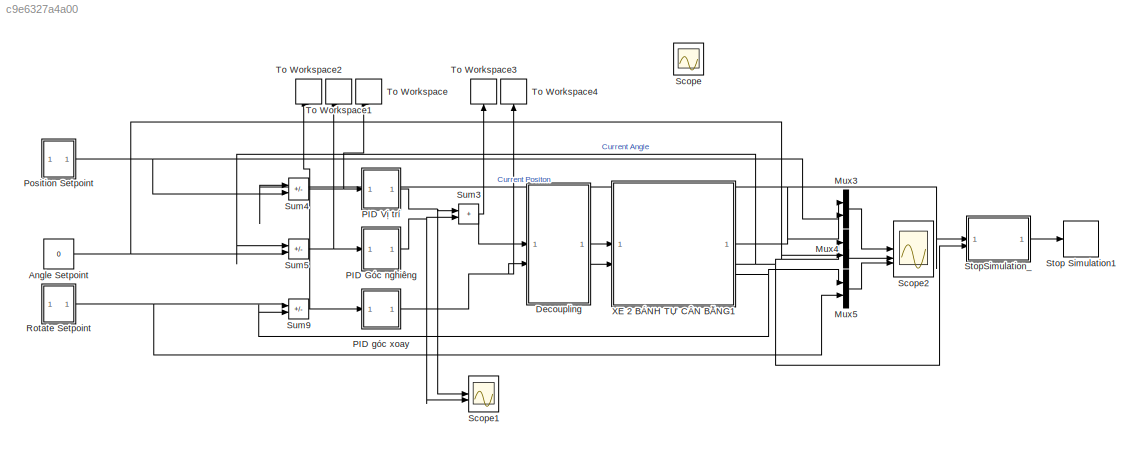
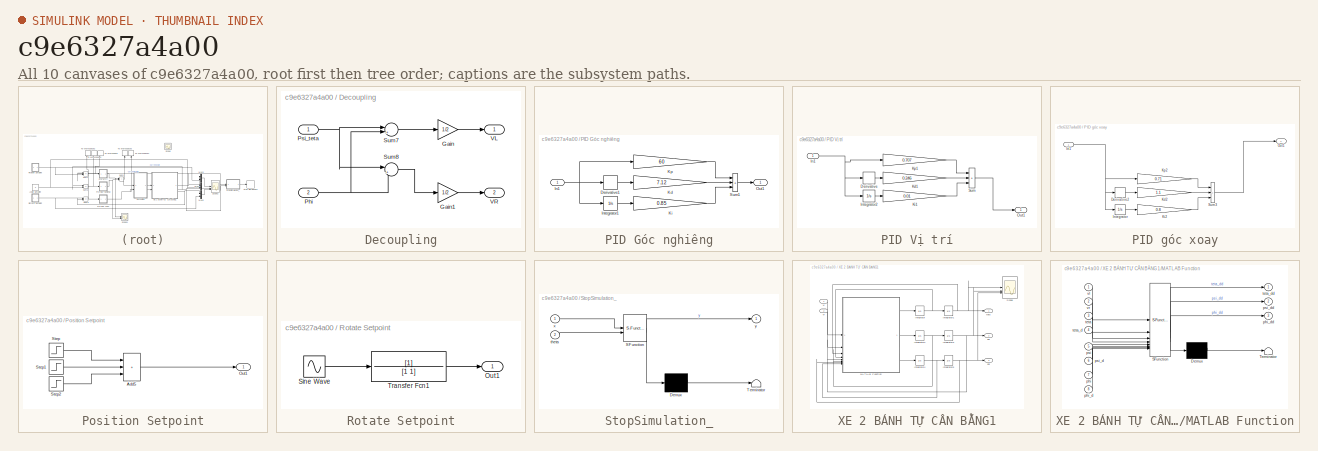
[diagram: thumbnail index - all 10 canvases of the model, root first then tree order]
MODEL slx_c9e6327a4a00
KIND model
CONFIG AbsTol = auto
CONFIG EnableMultiTasking = off
CONFIG FixedStep = 0.01
CONFIG MaxStep = auto
CONFIG MinStep = auto
CONFIG RelTol = 1e-3
CONFIG SampleTimeConstraint = Unconstrained
CONFIG SolverName = FixedStepAuto
CONFIG StartTime = 0.0
CONFIG StopTime = 25
BLOCK [Constant] Angle Setpoint
  Value = 0
BLOCK [SubSystem] Decoupling
BLOCK [Gain] Decoupling/Gain
  Gain = 1/2
BLOCK [Gain] Decoupling/Gain1
  Gain = 1/2
BLOCK [Inport] Decoupling/Phi
  Port = 2
BLOCK [Inport] Decoupling/Psi_teta
BLOCK [Sum] Decoupling/Sum7
  Inputs = |++
BLOCK [Sum] Decoupling/Sum8
  Inputs = |+-
BLOCK [Outport] Decoupling/VL
BLOCK [Outport] Decoupling/VR
  Port = 2
BLOCK [Mux] Mux3
  DisplayOption = bar
  Inputs = 2
BLOCK [Mux] Mux4
  DisplayOption = bar
  Inputs = 2
BLOCK [Mux] Mux5
  DisplayOption = bar
  Inputs = 2
BLOCK [SubSystem] PID Góc nghiêng
BLOCK [Derivative] PID Góc nghiêng/Derivative1
BLOCK [Inport] PID Góc nghiêng/In1
BLOCK [Integrator] PID Góc nghiêng/Integrator1
BLOCK [Gain] PID Góc nghiêng/Kd
  Gain = 7.12
BLOCK [Gain] PID Góc nghiêng/Ki
  Gain = 0.85
BLOCK [Gain] PID Góc nghiêng/Kp
  Gain = 60
BLOCK [Outport] PID Góc nghiêng/Out1
BLOCK [Sum] PID Góc nghiêng/Sum1
  IconShape = rectangular
  Inputs = +++
BLOCK [SubSystem] PID Vị trí
BLOCK [Derivative] PID Vị trí/Derivative
BLOCK [Inport] PID Vị trí/In1
BLOCK [Integrator] PID Vị trí/Integrator2
BLOCK [Gain] PID Vị trí/Kd1
  Gain = 0.246
BLOCK [Gain] PID Vị trí/Ki1
  Gain = 0.01
BLOCK [Gain] PID Vị trí/Kp1
  Gain = 0.707
BLOCK [Outport] PID Vị trí/Out1
BLOCK [Sum] PID Vị trí/Sum
  IconShape = rectangular
  Inputs = +++
BLOCK [SubSystem] PID góc xoay
BLOCK [Derivative] PID góc xoay/Derivative2
BLOCK [Inport] PID góc xoay/In1
BLOCK [Integrator] PID góc xoay/Integrator
BLOCK [Gain] PID góc xoay/Kd2
  Gain = 1.1
BLOCK [Gain] PID góc xoay/Ki2
  Gain = 0.8
BLOCK [Gain] PID góc xoay/Kp2
  Gain = 0.71
BLOCK [Outport] PID góc xoay/Out1
BLOCK [Sum] PID góc xoay/Sum3
  IconShape = rectangular
  Inputs = +++
BLOCK [SubSystem] Position Setpoint
BLOCK [Sum] Position Setpoint/Add5
  IconShape = rectangular
  Inputs = +++
BLOCK [Outport] Position Setpoint/Out1
BLOCK [Step] Position Setpoint/Step
  SampleTime = 0
  Time = 0
BLOCK [Step] Position Setpoint/Step1
  After = -1.5
  SampleTime = 0
  Time = 20
BLOCK [Step] Position Setpoint/Step2
  After = 3
  SampleTime = 0
  Time = 35
BLOCK [SubSystem] Rotate Setpoint
BLOCK [Outport] Rotate Setpoint/Out1
BLOCK [Sin] Rotate Setpoint/Sine Wave
  Amplitude = 0.06
  Frequency = pi/12
  SampleTime = 0
BLOCK [TransferFcn] Rotate Setpoint/Transfer Fcn1
BLOCK [Scope] Scope
  Floating = off
  NumInputPorts = 1
  ScopeSpecificationString = Simulink.scopes.TimeScopeBlockCfg('CurrentConfiguration', extmgr.ConfigurationSet(extmgr.Configuration('Core','General UI',true),extmgr.Configuration('Core','Source UI',true),extmgr.Configuration('Sources','WiredSimulink',true,'DataLoggingVariableName','ScopeData1'),extmgr.Configuration('Visuals','Time Domain',true),extmgr.Configuration('Tools','Plot Navigation',true),extmgr.Configuration('Tools',...<+40ch>
BLOCK [Scope] Scope1
  Floating = off
  NumInputPorts = 2
  ScopeSpecificationString = Simulink.scopes.TimeScopeBlockCfg('CurrentConfiguration', extmgr.ConfigurationSet(extmgr.Configuration('Core','General UI',true,'FigureColor',[1 1 1]),extmgr.Configuration('Core','Source UI',true),extmgr.Configuration('Sources','WiredSimulink',true,'DataLoggingVariableName','ScopeData1'),extmgr.Configuration('Visuals','Time Domain',true,'SerializedDisplays',{struct('MinYLimReal','-90.14768','MaxYL...<+2626ch>
BLOCK [Scope] Scope2
  Floating = off
  NumInputPorts = 3
  ScopeSpecificationString = Simulink.scopes.TimeScopeBlockCfg('CurrentConfiguration', extmgr.ConfigurationSet(extmgr.Configuration('Core','General UI',true,'FigureColor',[1 1 1]),extmgr.Configuration('Core','Source UI',true),extmgr.Configuration('Sources','WiredSimulink',true,'DataLoggingVariableName','ScopeData1'),extmgr.Configuration('Visuals','Time Domain',true,'SerializedDisplays',{struct('MinYLimReal','-0.89067','MaxYLi...<+3523ch>
BLOCK [Stop] Stop Simulation1
BLOCK [SubSystem] StopSimulation_
  ErrorFcn = Stateflow.Translate.translate
  PermitHierarchicalResolution = ExplicitOnly
  SFBlockType = MATLAB Function
  TreatAsAtomicUnit = on
BLOCK [Demux] StopSimulation_/ Demux 
  Outputs = 1
BLOCK [S-Function] StopSimulation_/ SFunction 
  EnableBusSupport = on
  FunctionName = sf_sfun
  PortCounts = [2 2]
  SFcnIsStateOwnerBlock = off
  SFunctionDeploymentMode = off
  Tag = Stateflow S-Function 6
BLOCK [Terminator] StopSimulation_/ Terminator 
BLOCK [Inport] StopSimulation_/theta
  Port = 2
BLOCK [Inport] StopSimulation_/x
BLOCK [Outport] StopSimulation_/y
  VectorParamsAs1DForOutWhenUnconnected = off
BLOCK [Sum] Sum3
  IconShape = rectangular
BLOCK [Sum] Sum4
  IconShape = rectangular
  Inputs = +|-
BLOCK [Sum] Sum5
  IconShape = rectangular
  Inputs = +-
BLOCK [Sum] Sum9
  IconShape = rectangular
  Inputs = -+
BLOCK [ToWorkspace] To Workspace
  FixptAsFi = on
  MaxDataPoints = inf
  NameLocation = right
  SampleTime = -1
  VariableName = e
BLOCK [ToWorkspace] To Workspace1
  FixptAsFi = on
  MaxDataPoints = inf
  NameLocation = right
  SampleTime = -1
  VariableName = e1
BLOCK [ToWorkspace] To Workspace2
  FixptAsFi = on
  MaxDataPoints = inf
  NameLocation = right
  SampleTime = -1
  VariableName = e2
BLOCK [ToWorkspace] To Workspace3
  FixptAsFi = on
  MaxDataPoints = inf
  NameLocation = right
  SampleTime = -1
  VariableName = u
BLOCK [ToWorkspace] To Workspace4
  FixptAsFi = on
  MaxDataPoints = inf
  NameLocation = right
  SampleTime = -1
  VariableName = u1
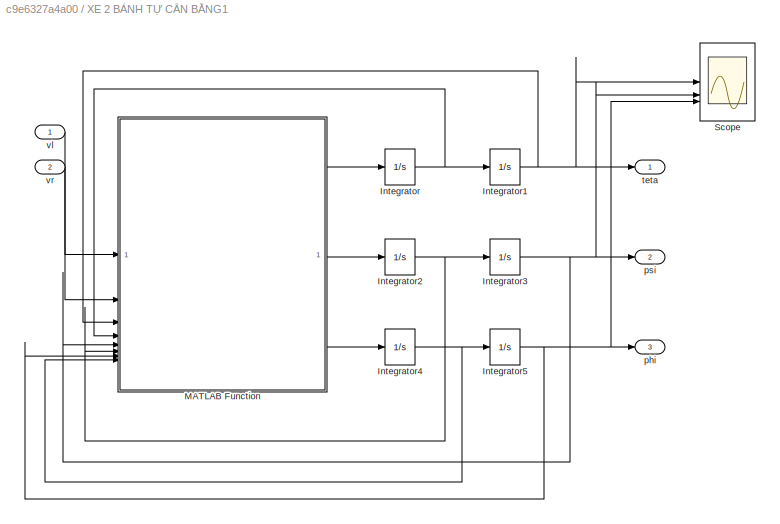
BLOCK [SubSystem] XE 2 BÁNH TỰ CÂN BẰNG1
BLOCK [Integrator] XE 2 BÁNH TỰ CÂN BẰNG1/Integrator
BLOCK [Integrator] XE 2 BÁNH TỰ CÂN BẰNG1/Integrator1
BLOCK [Integrator] XE 2 BÁNH TỰ CÂN BẰNG1/Integrator2
BLOCK [Integrator] XE 2 BÁNH TỰ CÂN BẰNG1/Integrator3
BLOCK [Integrator] XE 2 BÁNH TỰ CÂN BẰNG1/Integrator4
BLOCK [Integrator] XE 2 BÁNH TỰ CÂN BẰNG1/Integrator5
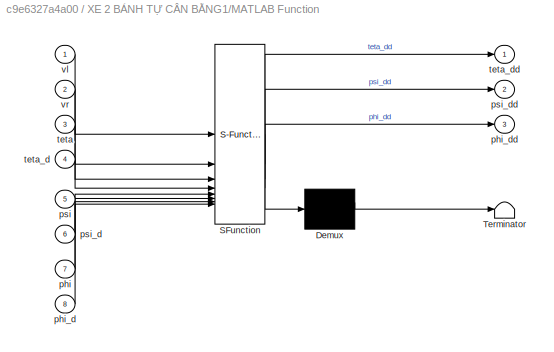
BLOCK [SubSystem] XE 2 BÁNH TỰ CÂN BẰNG1/MATLAB Function
  ErrorFcn = Stateflow.Translate.translate
  PermitHierarchicalResolution = ExplicitOnly
  SFBlockType = MATLAB Function
  TreatAsAtomicUnit = on
BLOCK [Demux] XE 2 BÁNH TỰ CÂN BẰNG1/MATLAB Function/ Demux 
  Outputs = 1
BLOCK [S-Function] XE 2 BÁNH TỰ CÂN BẰNG1/MATLAB Function/ SFunction 
  EnableBusSupport = on
  FunctionName = sf_sfun
  PortCounts = [8 4]
  SFcnIsStateOwnerBlock = off
  SFunctionDeploymentMode = off
  Tag = Stateflow S-Function 2
BLOCK [Terminator] XE 2 BÁNH TỰ CÂN BẰNG1/MATLAB Function/ Terminator 
BLOCK [Inport] XE 2 BÁNH TỰ CÂN BẰNG1/MATLAB Function/phi
  Port = 7
BLOCK [Inport] XE 2 BÁNH TỰ CÂN BẰNG1/MATLAB Function/phi_d
  Port = 8
BLOCK [Outport] XE 2 BÁNH TỰ CÂN BẰNG1/MATLAB Function/phi_dd
  Port = 3
BLOCK [Inport] XE 2 BÁNH TỰ CÂN BẰNG1/MATLAB Function/psi
  Port = 5
BLOCK [Inport] XE 2 BÁNH TỰ CÂN BẰNG1/MATLAB Function/psi_d
  Port = 6
BLOCK [Outport] XE 2 BÁNH TỰ CÂN BẰNG1/MATLAB Function/psi_dd
  Port = 2
BLOCK [Inport] XE 2 BÁNH TỰ CÂN BẰNG1/MATLAB Function/teta
  Port = 3
BLOCK [Inport] XE 2 BÁNH TỰ CÂN BẰNG1/MATLAB Function/teta_d
  Port = 4
BLOCK [Outport] XE 2 BÁNH TỰ CÂN BẰNG1/MATLAB Function/teta_dd
BLOCK [Inport] XE 2 BÁNH TỰ CÂN BẰNG1/MATLAB Function/vl
BLOCK [Inport] XE 2 BÁNH TỰ CÂN BẰNG1/MATLAB Function/vr
  Port = 2
BLOCK [Scope] XE 2 BÁNH TỰ CÂN BẰNG1/Scope
  Floating = off
  NumInputPorts = 3
  ScopeSpecificationString = Simulink.scopes.TimeScopeBlockCfg('CurrentConfiguration', extmgr.ConfigurationSet(extmgr.Configuration('Core','General UI',true,'FigureColor',[1 1 1]),extmgr.Configuration('Core','Source UI',true),extmgr.Configuration('Sources','WiredSimulink',true,'DataLoggingVariableName','ScopeData1'),extmgr.Configuration('Visuals','Time Domain',true,'SerializedDisplays',{struct('MinYLimReal','-3.05105','MaxYLi...<+3124ch>
BLOCK [Outport] XE 2 BÁNH TỰ CÂN BẰNG1/phi
  Port = 3
BLOCK [Outport] XE 2 BÁNH TỰ CÂN BẰNG1/psi
  Port = 2
BLOCK [Outport] XE 2 BÁNH TỰ CÂN BẰNG1/teta
BLOCK [Inport] XE 2 BÁNH TỰ CÂN BẰNG1/vl
BLOCK [Inport] XE 2 BÁNH TỰ CÂN BẰNG1/vr
  Port = 2
NET Angle Setpoint:1 -> Mux4:2, Sum5:2
LINE Decoupling/Gain1:1 -> Decoupling/VR:1
LINE Decoupling/Gain:1 -> Decoupling/VL:1
NET Decoupling/Phi:1 -> Decoupling/Sum7:2, Decoupling/Sum8:2
NET Decoupling/Psi_teta:1 -> Decoupling/Sum7:1, Decoupling/Sum8:1
LINE Decoupling/Sum7:1 -> Decoupling/Gain:1
LINE Decoupling/Sum8:1 -> Decoupling/Gain1:1
LINE Decoupling:1 -> XE 2 BÁNH TỰ CÂN BẰNG1:1
LINE Decoupling:2 -> XE 2 BÁNH TỰ CÂN BẰNG1:2
LINE Mux3:1 -> Scope2:1
LINE Mux4:1 -> Scope2:2
LINE Mux5:1 -> Scope2:3
LINE PID Góc nghiêng/Derivative1:1 -> PID Góc nghiêng/Kd:1
NET PID Góc nghiêng/In1:1 -> PID Góc nghiêng/Derivative1:1, PID Góc nghiêng/Integrator1:1, PID Góc nghiêng/Kp:1
LINE PID Góc nghiêng/Integrator1:1 -> PID Góc nghiêng/Ki:1
LINE PID Góc nghiêng/Kd:1 -> PID Góc nghiêng/Sum1:2
LINE PID Góc nghiêng/Ki:1 -> PID Góc nghiêng/Sum1:3
LINE PID Góc nghiêng/Kp:1 -> PID Góc nghiêng/Sum1:1
LINE PID Góc nghiêng/Sum1:1 -> PID Góc nghiêng/Out1:1
NET PID Góc nghiêng:1 -> Scope1:2, Sum3:2
LINE PID Vị trí/Derivative:1 -> PID Vị trí/Kd1:1
NET PID Vị trí/In1:1 -> PID Vị trí/Derivative:1, PID Vị trí/Integrator2:1, PID Vị trí/Kp1:1
LINE PID Vị trí/Integrator2:1 -> PID Vị trí/Ki1:1
LINE PID Vị trí/Kd1:1 -> PID Vị trí/Sum:2
LINE PID Vị trí/Ki1:1 -> PID Vị trí/Sum:3
LINE PID Vị trí/Kp1:1 -> PID Vị trí/Sum:1
LINE PID Vị trí/Sum:1 -> PID Vị trí/Out1:1
NET PID Vị trí:1 -> Scope1:1, Sum3:1
LINE PID góc xoay/Derivative2:1 -> PID góc xoay/Kd2:1
NET PID góc xoay/In1:1 -> PID góc xoay/Derivative2:1, PID góc xoay/Integrator:1, PID góc xoay/Kp2:1
LINE PID góc xoay/Integrator:1 -> PID góc xoay/Ki2:1
LINE PID góc xoay/Kd2:1 -> PID góc xoay/Sum3:2
LINE PID góc xoay/Ki2:1 -> PID góc xoay/Sum3:3
LINE PID góc xoay/Kp2:1 -> PID góc xoay/Sum3:1
LINE PID góc xoay/Sum3:1 -> PID góc xoay/Out1:1
NET PID góc xoay:1 -> Decoupling:2, To Workspace4:1
LINE Position Setpoint/Add5:1 -> Position Setpoint/Out1:1
LINE Position Setpoint/Step1:1 -> Position Setpoint/Add5:2
LINE Position Setpoint/Step2:1 -> Position Setpoint/Add5:3
LINE Position Setpoint/Step:1 -> Position Setpoint/Add5:1
NET Position Setpoint:1 -> Mux3:2, Sum4:2
LINE Rotate Setpoint/Sine Wave:1 -> Rotate Setpoint/Transfer Fcn1:1
LINE Rotate Setpoint/Transfer Fcn1:1 -> Rotate Setpoint/Out1:1
NET Rotate Setpoint:1 -> Mux5:2, Sum9:1
LINE StopSimulation_:1 -> Stop Simulation1:1
NET Sum3:1 -> Decoupling:1, To Workspace3:1
NET Sum4:1 -> PID Vị trí:1, To Workspace:1
NET Sum5:1 -> PID Góc nghiêng:1, To Workspace1:1
NET Sum9:1 -> PID góc xoay:1, To Workspace2:1
NET XE 2 BÁNH TỰ CÂN BẰNG1/Integrator1:1 -> XE 2 BÁNH TỰ CÂN BẰNG1/MATLAB Function:3, XE 2 BÁNH TỰ CÂN BẰNG1/Scope:1, XE 2 BÁNH TỰ CÂN BẰNG1/teta:1
NET XE 2 BÁNH TỰ CÂN BẰNG1/Integrator2:1 -> XE 2 BÁNH TỰ CÂN BẰNG1/Integrator3:1, XE 2 BÁNH TỰ CÂN BẰNG1/MATLAB Function:6
NET XE 2 BÁNH TỰ CÂN BẰNG1/Integrator3:1 -> XE 2 BÁNH TỰ CÂN BẰNG1/MATLAB Function:5, XE 2 BÁNH TỰ CÂN BẰNG1/Scope:2, XE 2 BÁNH TỰ CÂN BẰNG1/psi:1
NET XE 2 BÁNH TỰ CÂN BẰNG1/Integrator4:1 -> XE 2 BÁNH TỰ CÂN BẰNG1/Integrator5:1, XE 2 BÁNH TỰ CÂN BẰNG1/MATLAB Function:8
NET XE 2 BÁNH TỰ CÂN BẰNG1/Integrator5:1 -> XE 2 BÁNH TỰ CÂN BẰNG1/MATLAB Function:7, XE 2 BÁNH TỰ CÂN BẰNG1/Scope:3, XE 2 BÁNH TỰ CÂN BẰNG1/phi:1
NET XE 2 BÁNH TỰ CÂN BẰNG1/Integrator:1 -> XE 2 BÁNH TỰ CÂN BẰNG1/Integrator1:1, XE 2 BÁNH TỰ CÂN BẰNG1/MATLAB Function:4
LINE XE 2 BÁNH TỰ CÂN BẰNG1/MATLAB Function:1 -> XE 2 BÁNH TỰ CÂN BẰNG1/Integrator:1
LINE XE 2 BÁNH TỰ CÂN BẰNG1/MATLAB Function:2 -> XE 2 BÁNH TỰ CÂN BẰNG1/Integrator2:1
LINE XE 2 BÁNH TỰ CÂN BẰNG1/MATLAB Function:3 -> XE 2 BÁNH TỰ CÂN BẰNG1/Integrator4:1
LINE XE 2 BÁNH TỰ CÂN BẰNG1/vl:1 -> XE 2 BÁNH TỰ CÂN BẰNG1/MATLAB Function:1
LINE XE 2 BÁNH TỰ CÂN BẰNG1/vr:1 -> XE 2 BÁNH TỰ CÂN BẰNG1/MATLAB Function:2
NET XE 2 BÁNH TỰ CÂN BẰNG1:1 -> Mux3:1, StopSimulation_:1, Sum4:1
NET XE 2 BÁNH TỰ CÂN BẰNG1:2 -> Mux4:1, StopSimulation_:2, Sum5:1
NET XE 2 BÁNH TỰ CÂN BẰNG1:3 -> Mux5:1, Sum9:2
note: NET lines group one-source signal fan-out (src -> all destinations, sorted); 1:1 wires keep LINE
CHART XE 2 BÁNH TỰ CÂN BẰNG1/MATLAB Function states=1 transitions=1
  STATE_LABEL 'eML_blk_kernel()'
  STATE_LABEL 'SCRIPT:\nfunction [teta_dd,psi_dd,phi_dd] = fcn(vl  ,vr  ,teta,teta_d,psi,psi_d,phi,phi_d)\n\n%% Thông số hệ thống xe 2 bánh tự cân bằng dùng LQR\nm = 0.08; %Khoi luong banh xe\nM = 0.7; %Khoi luong robot\nR = 0.0325; %ban kinh ban xe\nW = 0.15; %Chieu rong robot\nD = 0.06; %Chieu sau robot\nH = 0.13; %Chieu cao robot\nL = 0.02; %khoang cach tu trong tam den truc banh xe\nfw = 0.001; %He so ma sat giua banh ...<+2288ch>'
CHART StopSimulation_ states=1 transitions=1
  STATE_LABEL 'eML_blk_kernel()'
  STATE_LABEL 'SCRIPT:\nfunction y = fcn(x,theta)\nif (abs(x)> 3)||(abs(theta)*180/pi > 15)\n    y=1;\nelse\n    y=0;\nend\n'
CHART  states=0 transitions=0
CHART  states=0 transitions=0
